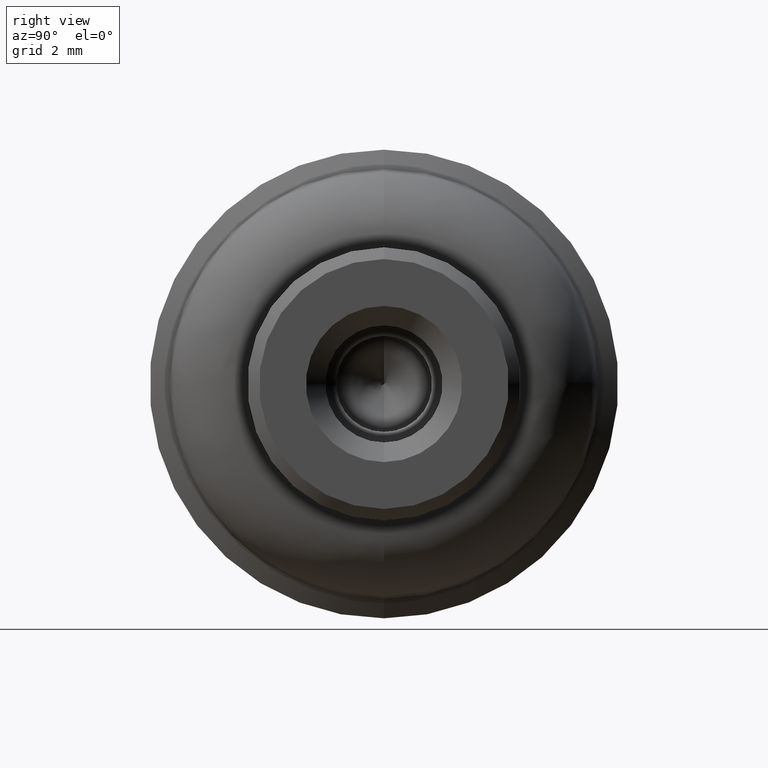
[diagram: clean part render]
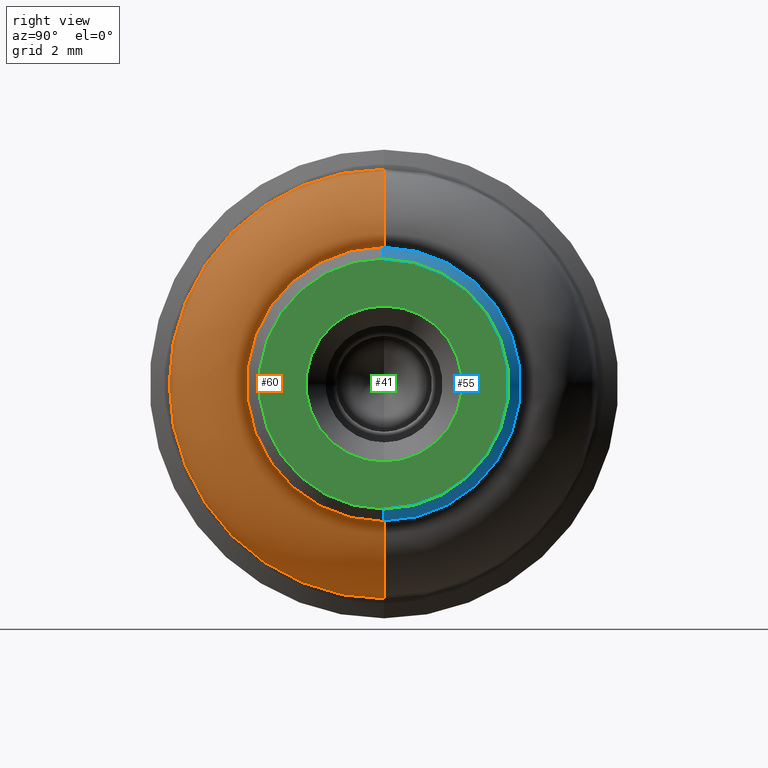
[diagram: same view with three faces highlighted in distinct colors, each labeled with its STEP entity id]
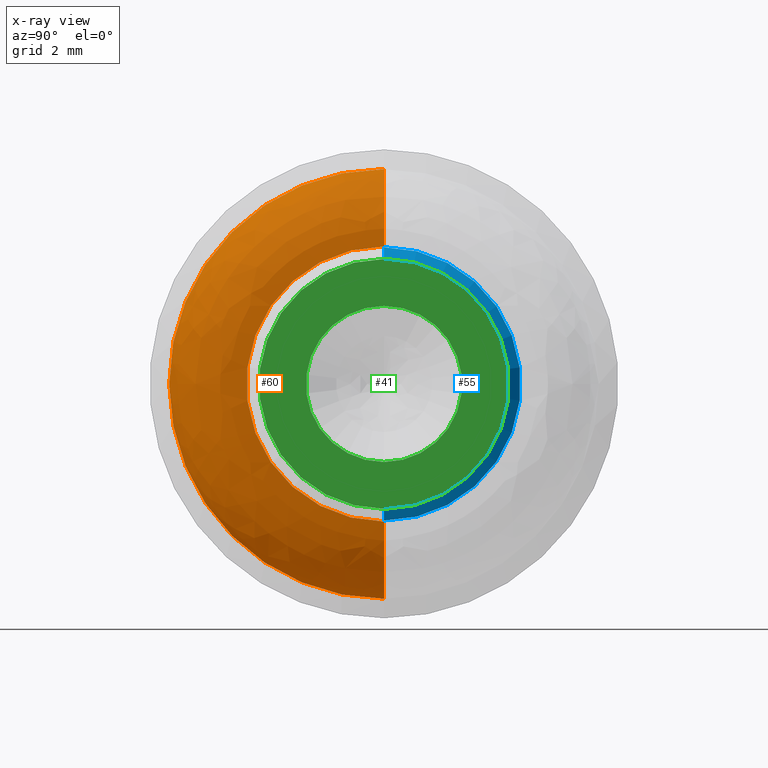
[diagram: x-ray of the same camera — body ghosted, the three highlighted faces saturated]
A machine part, right view with three faces highlighted in distinct colors.
The next image is the same camera in x-ray (body ghosted, the three faces saturated) — at least one of them is partly hidden behind the body in this view.
Their STEP definitions:

[orange] entity #60 — the highlighted face is a freeform B-spline surface patch.
#60=ADVANCED_FACE('',(#274),#273,.T.);
#273=( BOUNDED_SURFACE() B_SPLINE_SURFACE( 2,2,((#524,#525,#526,#527,#528),(#529,#530,#531,#532,#533),(#534,#535,#536,#537,#538),(#539,#540,#541,#542,#543),(#544,#545,#546,#547,#548)), .UNSPECIFIED.,.F.,.F.,.F.) B_SPLINE_SURFACE_WITH_KNOTS((3,2,3),(3,2,3),(0.00000000000E+00,5.00000000000E-01,1.00000000000E+00),(0.00000000000E+00,5.00000000000E-01,1.00000000000E+00), .UNSPECIFIED. ) GEOMETRIC_REPRESENTATION_ITEM() RATIONAL_B_SPLINE_SURFACE(((1.00000000000E+00,7.58287962218E-01,1.00000000000E+00,7.58287962218E-01,1.00000000000E+00),(7.07106781187E-01,5.36190560177E-01,7.07106781187E-01,5.36190560177E-01,7.07106781187E-01),(1.00000000000E+00,7.58287962218E-01,1.00000000000E+00,7.58287962218E-01,1.00000000000E+00),(7.07106781187E-01,5.36190560177E-01,7.07106781187E-01,5.36190560177E-01,7.07106781187E-01),(1.00000000000E+00,7.58287962218E-01,1.00000000000E+00,7.58287962218E-01,1.00000000000E+00))) REPRESENTATION_ITEM('') SURFACE() );
#274=FACE_OUTER_BOUND('',#549,.T.);
#524=CARTESIAN_POINT('',(-4.19999746542E+00,-1.89241896662E-16,-1.54532839121E+00));
#525=CARTESIAN_POINT('',(-2.50000000000E+00,-2.20826935259E-16,-1.80324832196E+00));
#526=CARTESIAN_POINT('',(-2.50000000000E+00,-4.31392080261E-16,-3.52270000000E+00));
#527=CARTESIAN_POINT('',(-2.50000000000E+00,-6.41957225263E-16,-5.24215167804E+00));
#528=CARTESIAN_POINT('',(-4.19999746542E+00,-6.73542263860E-16,-5.50007160879E+00));
#529=CARTESIAN_POINT('',(-4.19999746542E+00,-1.54532839121E+00,-1.54532839121E+00));
#530=CARTESIAN_POINT('',(-2.50000000000E+00,-1.80324832196E+00,-1.80324832196E+00));
#531=CARTESIAN_POINT('',(-2.50000000000E+00,-3.52270000000E+00,-3.52270000000E+00));
#532=CARTESIAN_POINT('',(-2.50000000000E+00,-5.24215167804E+00,-5.24215167804E+00));
#533=CARTESIAN_POINT('',(-4.19999746542E+00,-5.50007160879E+00,-5.50007160879E+00));
#534=CARTESIAN_POINT('',(-4.19999746542E+00,-1.54532839121E+00,9.46178232655E-17));
#535=CARTESIAN_POINT('',(-2.50000000000E+00,-1.80324832196E+00,1.10409820981E-16));
#536=CARTESIAN_POINT('',(-2.50000000000E+00,-3.52270000000E+00,2.15688916293E-16));
#537=CARTESIAN_POINT('',(-2.50000000000E+00,-5.24215167804E+00,3.20968011605E-16));
#538=CARTESIAN_POINT('',(-4.19999746542E+00,-5.50007160879E+00,3.36760009321E-16));
#539=CARTESIAN_POINT('',(-4.19999746542E+00,-1.54532839121E+00,1.54532839121E+00));
#540=CARTESIAN_POINT('',(-2.50000000000E+00,-1.80324832196E+00,1.80324832196E+00));
#541=CARTESIAN_POINT('',(-2.50000000000E+00,-3.52270000000E+00,3.52270000000E+00));
#542=CARTESIAN_POINT('',(-2.50000000000E+00,-5.24215167804E+00,5.24215167804E+00));
#543=CARTESIAN_POINT('',(-4.19999746542E+00,-5.50007160879E+00,5.50007160879E+00));
#544=CARTESIAN_POINT('',(-4.19999746542E+00,-6.25013089772E-21,1.54532839121E+00));
#545=CARTESIAN_POINT('',(-2.50000000000E+00,-7.29329643947E-21,1.80324832196E+00));
#546=CARTESIAN_POINT('',(-2.50000000000E+00,-1.42476746293E-20,3.52270000000E+00));
#547=CARTESIAN_POINT('',(-2.50000000000E+00,-2.12020528192E-20,5.24215167804E+00));
#548=CARTESIAN_POINT('',(-4.19999746542E+00,-2.22452183608E-20,5.50007160879E+00));
#549=EDGE_LOOP('',(#758,#759,#760,#761));
#758=ORIENTED_EDGE('',*,*,#838,.F.);
#759=ORIENTED_EDGE('',*,*,#839,.F.);
#760=ORIENTED_EDGE('',*,*,#808,.T.);
#761=ORIENTED_EDGE('',*,*,#840,.T.);
#808=EDGE_CURVE('',#926,#927,#928,.T.);
#838=EDGE_CURVE('',#1121,#1122,#1123,.T.);
#839=EDGE_CURVE('',#926,#1121,#1129,.T.);
#840=EDGE_CURVE('',#927,#1122,#1135,.T.);
#926=VERTEX_POINT('',#1287);
#927=VERTEX_POINT('',#1288);
#928=CIRCLE('',#1292,3.52270000000E+00);
#1121=VERTEX_POINT('',#1390);
#1122=VERTEX_POINT('',#1391);
#1123=CIRCLE('',#1395,5.50007160879E+00);
#1129=(BOUNDED_CURVE() B_SPLINE_CURVE(2,(#1396,#1397,#1398),.UNSPECIFIED.,.F.,.F.) B_SPLINE_CURVE_WITH_KNOTS((3,3),(5.00000000000E-01,1.00000000000E+00),.UNSPECIFIED.) CURVE() GEOMETRIC_REPRESENTATION_ITEM() RATIONAL_B_SPLINE_CURVE((1.00000000000E+00,7.58287962218E-01,1.00000000000E+00)) REPRESENTATION_ITEM('') );
#1135=(BOUNDED_CURVE() B_SPLINE_CURVE(3,(#1399,#1400,#1401,#1402,#1403),.UNSPECIFIED.,.F.,.F.) B_SPLINE_CURVE_WITH_KNOTS((4,1,4),(4.99999340689E-01,7.49999629352E-01,1.00000000000E+00),.UNSPECIFIED.) CURVE() GEOMETRIC_REPRESENTATION_ITEM() RATIONAL_B_SPLINE_CURVE((1.00000000000E+00,1.00000000000E+00,1.00000000000E+00,1.00000000000E+00,1.00000000000E+00)) REPRESENTATION_ITEM('') );
#1287=CARTESIAN_POINT('',(-2.50000000000E+00,1.48029736617E-16,-3.52270000000E+00));
#1288=CARTESIAN_POINT('',(-2.50000000000E+00,0.00000000000E+00,3.52270000000E+00));
#1289=CARTESIAN_POINT('',(-2.50000000000E+00,0.00000000000E+00,0.00000000000E+00));
#1290=DIRECTION('',(-1.00000000000E+00,0.00000000000E+00,0.00000000000E+00));
#1291=DIRECTION('',(0.00000000000E+00,-1.22460635382E-16,1.00000000000E+00));
#1292=AXIS2_PLACEMENT_3D('',#1289,#1290,#1291);
#1390=CARTESIAN_POINT('',(-4.19999746542E+00,2.96059473233E-16,-5.50007160879E+00));
#1391=CARTESIAN_POINT('',(-4.19999746542E+00,0.00000000000E+00,5.50007160879E+00));
#1392=CARTESIAN_POINT('',(-4.19999746542E+00,0.00000000000E+00,0.00000000000E+00));
#1393=DIRECTION('',(-1.00000000000E+00,0.00000000000E+00,0.00000000000E+00));
#1394=DIRECTION('',(0.00000000000E+00,-1.22460635382E-16,1.00000000000E+00));
#1395=AXIS2_PLACEMENT_3D('',#1392,#1393,#1394);
#1396=CARTESIAN_POINT('',(-2.50000000000E+00,-4.31392080261E-16,-3.52270000000E+00));
#1397=CARTESIAN_POINT('',(-2.50000000000E+00,-6.41957225263E-16,-5.24215167804E+00));
#1398=CARTESIAN_POINT('',(-4.19999746542E+00,-6.73542263860E-16,-5.50007160879E+00));
#1399=CARTESIAN_POINT('',(-2.50000000000E+00,2.96059271567E-16,3.52269656145E+00));
#1400=CARTESIAN_POINT('',(-2.49704872255E+00,4.82712143179E-16,3.99252617995E+00));
#1401=CARTESIAN_POINT('',(-2.85080101353E+00,7.56521865073E-16,4.94055637841E+00));
#1402=CARTESIAN_POINT('',(-3.73504085900E+00,6.98313719524E-16,5.43251364005E+00));
#1403=CARTESIAN_POINT('',(-4.19999746542E+00,5.92118946467E-16,5.50007160879E+00));

[blue] entity #55 — the highlighted face is a freeform B-spline surface patch.
#55=ADVANCED_FACE('',(#224),#223,.T.);
#223=( BOUNDED_SURFACE() B_SPLINE_SURFACE( 2,1,((#493,#494),(#495,#496),(#497,#498),(#499,#500),(#501,#502)), .UNSPECIFIED.,.F.,.F.,.F.) B_SPLINE_SURFACE_WITH_KNOTS((3,2,3),(2,2),(0.00000000000E+00,5.00000000000E-01,1.00000000000E+00),(0.00000000000E+00,1.00000000000E+00), .UNSPECIFIED. ) GEOMETRIC_REPRESENTATION_ITEM() RATIONAL_B_SPLINE_SURFACE(((1.00000000000E+00,1.00000000000E+00),(7.07106781187E-01,7.07106781187E-01),(1.00000000000E+00,1.00000000000E+00),(7.07106781187E-01,7.07106781187E-01),(1.00000000000E+00,1.00000000000E+00))) REPRESENTATION_ITEM('') SURFACE() );
#224=FACE_OUTER_BOUND('',#503,.T.);
#493=CARTESIAN_POINT('',(0.00000000000E+00,3.91886975727E-16,3.20000000000E+00));
#494=CARTESIAN_POINT('',(-3.00000000000E-01,4.28626379702E-16,3.50000000000E+00));
#495=CARTESIAN_POINT('',(0.00000000000E+00,3.20000000000E+00,3.20000000000E+00));
#496=CARTESIAN_POINT('',(-3.00000000000E-01,3.50000000000E+00,3.50000000000E+00));
#497=CARTESIAN_POINT('',(0.00000000000E+00,3.20000000000E+00,-1.95943487864E-16));
#498=CARTESIAN_POINT('',(-3.00000000000E-01,3.50000000000E+00,-2.14313189851E-16));
#499=CARTESIAN_POINT('',(0.00000000000E+00,3.20000000000E+00,-3.20000000000E+00));
#500=CARTESIAN_POINT('',(-3.00000000000E-01,3.50000000000E+00,-3.50000000000E+00));
#501=CARTESIAN_POINT('',(0.00000000000E+00,0.00000000000E+00,-3.20000000000E+00));
#502=CARTESIAN_POINT('',(-3.00000000000E-01,0.00000000000E+00,-3.50000000000E+00));
#503=EDGE_LOOP('',(#738,#739,#740,#741));
#738=ORIENTED_EDGE('',*,*,#801,.T.);
#739=ORIENTED_EDGE('',*,*,#831,.T.);
#740=ORIENTED_EDGE('',*,*,#833,.F.);
#741=ORIENTED_EDGE('',*,*,#832,.F.);
#801=EDGE_CURVE('',#871,#870,#878,.T.);
#831=EDGE_CURVE('',#870,#1071,#1079,.T.);
#832=EDGE_CURVE('',#871,#1072,#1085,.T.);
#833=EDGE_CURVE('',#1072,#1071,#1091,.T.);
#870=VERTEX_POINT('',#1247);
#871=VERTEX_POINT('',#1248);
#878=CIRCLE('',#1256,3.20000000000E+00);
#1071=VERTEX_POINT('',#1368);
#1072=VERTEX_POINT('',#1369);
#1079=(BOUNDED_CURVE() B_SPLINE_CURVE(1,(#1374,#1375),.UNSPECIFIED.,.F.,.F.) B_SPLINE_CURVE_WITH_KNOTS((2,2),(0.00000000000E+00,1.00000000000E+00),.UNSPECIFIED.) CURVE() GEOMETRIC_REPRESENTATION_ITEM() RATIONAL_B_SPLINE_CURVE((1.00000000000E+00,1.00000000000E+00)) REPRESENTATION_ITEM('') );
#1085=(BOUNDED_CURVE() B_SPLINE_CURVE(1,(#1376,#1377),.UNSPECIFIED.,.F.,.F.) B_SPLINE_CURVE_WITH_KNOTS((2,2),(0.00000000000E+00,1.00000000000E+00),.UNSPECIFIED.) CURVE() GEOMETRIC_REPRESENTATION_ITEM() RATIONAL_B_SPLINE_CURVE((7.50000000000E-01,7.50000000000E-01)) REPRESENTATION_ITEM('') );
#1091=CIRCLE('',#1381,3.50000000000E+00);
#1247=CARTESIAN_POINT('',(0.00000000000E+00,1.48029736617E-16,-3.20000000000E+00));
#1248=CARTESIAN_POINT('',(0.00000000000E+00,0.00000000000E+00,3.20000000000E+00));
#1253=CARTESIAN_POINT('',(0.00000000000E+00,0.00000000000E+00,0.00000000000E+00));
#1254=DIRECTION('',(-1.00000000000E+00,0.00000000000E+00,0.00000000000E+00));
#1255=DIRECTION('',(0.00000000000E+00,-1.22460635382E-16,1.00000000000E+00));
#1256=AXIS2_PLACEMENT_3D('',#1253,#1254,#1255);
#1368=CARTESIAN_POINT('',(-3.00000000000E-01,1.48029736617E-16,-3.50000000000E+00));
#1369=CARTESIAN_POINT('',(-3.00000000000E-01,0.00000000000E+00,3.50000000000E+00));
#1374=CARTESIAN_POINT('',(0.00000000000E+00,-7.83748066446E-16,-3.20000000000E+00));
#1375=CARTESIAN_POINT('',(-3.00000000000E-01,-8.57224447676E-16,-3.50000000000E+00));
#1376=CARTESIAN_POINT('',(0.00000000000E+00,8.88178419700E-16,3.20000000000E+00));
#1377=CARTESIAN_POINT('',(-3.00000000000E-01,8.88178419700E-16,3.50000000000E+00));
#1378=CARTESIAN_POINT('',(-3.00000000000E-01,0.00000000000E+00,0.00000000000E+00));
#1379=DIRECTION('',(-1.00000000000E+00,0.00000000000E+00,0.00000000000E+00));
#1380=DIRECTION('',(0.00000000000E+00,-1.22460635382E-16,1.00000000000E+00));
#1381=AXIS2_PLACEMENT_3D('',#1378,#1379,#1380);

[green] entity #41 — the highlighted planar face has unit normal (-1, 0, 0).
#41=ADVANCED_FACE('',(#81,#82),#80,.F.);
#80=PLANE('',#381);
#81=FACE_OUTER_BOUND('',#382,.T.);
#82=FACE_BOUND('',#383,.T.);
#378=CARTESIAN_POINT('',(0.00000000000E+00,-6.65107510106E+00,-7.36000000000E+00));
#379=DIRECTION('',(-1.00000000000E+00,0.00000000000E+00,0.00000000000E+00));
#380=DIRECTION('',(0.00000000000E+00,0.00000000000E+00,1.00000000000E+00));
#381=AXIS2_PLACEMENT_3D('',#378,#379,#380);
#382=EDGE_LOOP('',(#684,#685));
#383=EDGE_LOOP('',(#686,#687));
#684=ORIENTED_EDGE('',*,*,#800,.F.);
#685=ORIENTED_EDGE('',*,*,#801,.F.);
#686=ORIENTED_EDGE('',*,*,#802,.T.);
#687=ORIENTED_EDGE('',*,*,#803,.T.);
#800=EDGE_CURVE('',#870,#871,#872,.T.);
#801=EDGE_CURVE('',#871,#870,#878,.T.);
#802=EDGE_CURVE('',#884,#885,#886,.T.);
#803=EDGE_CURVE('',#885,#884,#892,.T.);
#870=VERTEX_POINT('',#1247);
#871=VERTEX_POINT('',#1248);
#872=CIRCLE('',#1252,3.20000000000E+00);
#878=CIRCLE('',#1256,3.20000000000E+00);
#884=VERTEX_POINT('',#1257);
#885=VERTEX_POINT('',#1258);
#886=CIRCLE('',#1262,2.00000000000E+00);
#892=CIRCLE('',#1266,2.00000000000E+00);
#1247=CARTESIAN_POINT('',(0.00000000000E+00,1.48029736617E-16,-3.20000000000E+00));
#1248=CARTESIAN_POINT('',(0.00000000000E+00,0.00000000000E+00,3.20000000000E+00));
#1249=CARTESIAN_POINT('',(0.00000000000E+00,0.00000000000E+00,0.00000000000E+00));
#1250=DIRECTION('',(-1.00000000000E+00,0.00000000000E+00,0.00000000000E+00));
#1251=DIRECTION('',(0.00000000000E+00,-1.22460635382E-16,1.00000000000E+00));
#1252=AXIS2_PLACEMENT_3D('',#1249,#1250,#1251);
#1253=CARTESIAN_POINT('',(0.00000000000E+00,0.00000000000E+00,0.00000000000E+00));
#1254=DIRECTION('',(-1.00000000000E+00,0.00000000000E+00,0.00000000000E+00));
#1255=DIRECTION('',(0.00000000000E+00,-1.22460635382E-16,1.00000000000E+00));
#1256=AXIS2_PLACEMENT_3D('',#1253,#1254,#1255);
#1257=CARTESIAN_POINT('',(0.00000000000E+00,0.00000000000E+00,2.00000000000E+00));
#1258=CARTESIAN_POINT('',(0.00000000000E+00,2.22044604925E-16,-2.00000000000E+00));
#1259=CARTESIAN_POINT('',(0.00000000000E+00,0.00000000000E+00,0.00000000000E+00));
#1260=DIRECTION('',(-1.00000000000E+00,0.00000000000E+00,0.00000000000E+00));
#1261=DIRECTION('',(0.00000000000E+00,-1.22460635382E-16,1.00000000000E+00));
#1262=AXIS2_PLACEMENT_3D('',#1259,#1260,#1261);
#1263=CARTESIAN_POINT('',(0.00000000000E+00,0.00000000000E+00,0.00000000000E+00));
#1264=DIRECTION('',(-1.00000000000E+00,0.00000000000E+00,0.00000000000E+00));
#1265=DIRECTION('',(0.00000000000E+00,-1.22460635382E-16,1.00000000000E+00));
#1266=AXIS2_PLACEMENT_3D('',#1263,#1264,#1265);